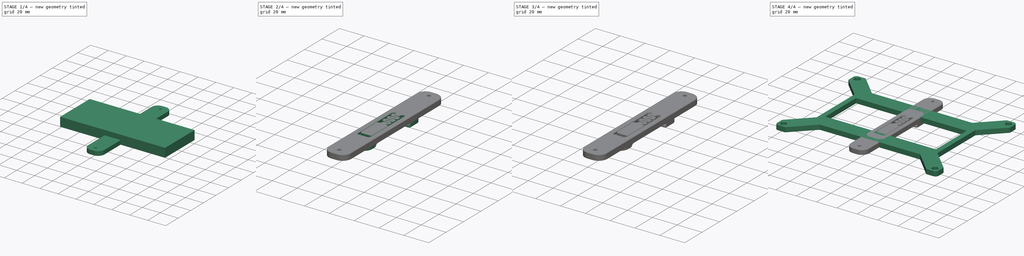
[diagram: build sequence overview — one tinted view per stage of 4, left to right]
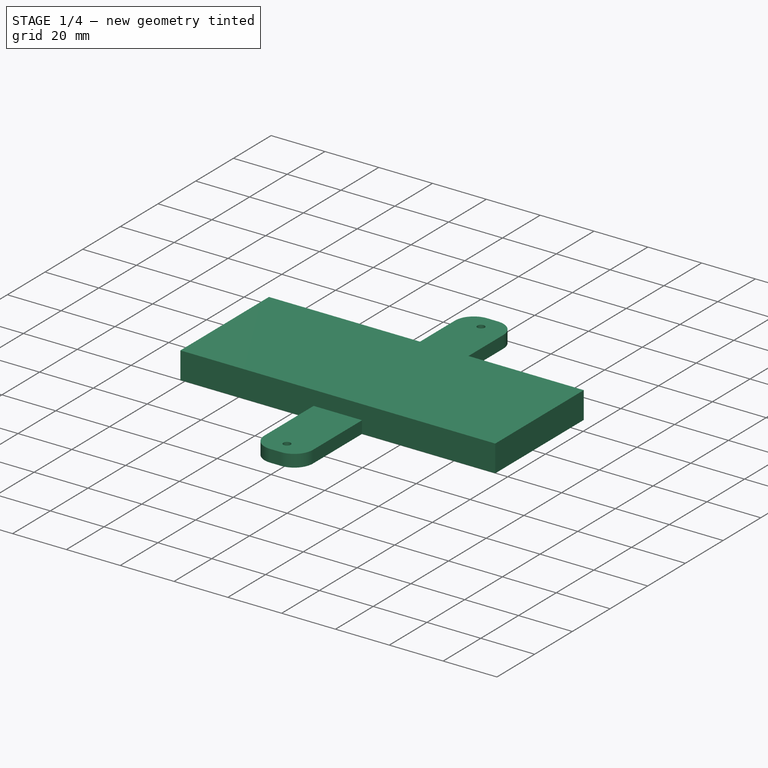
[diagram: stage 1 of 4 — iso view after this stage's code; geometry added in this stage tinted green]
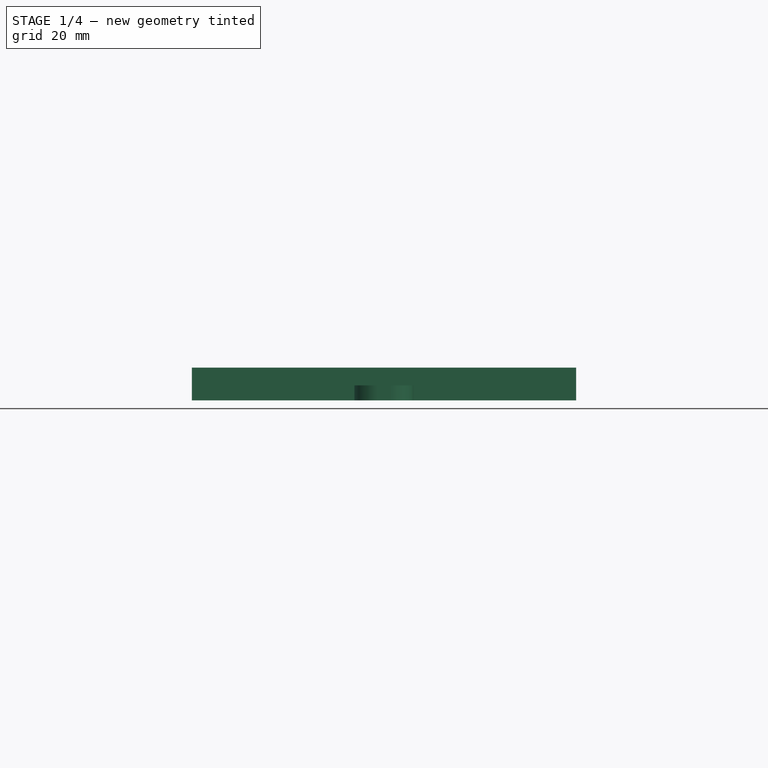
[diagram: stage 1 of 4 — front view after this stage's code; geometry added in this stage tinted green]
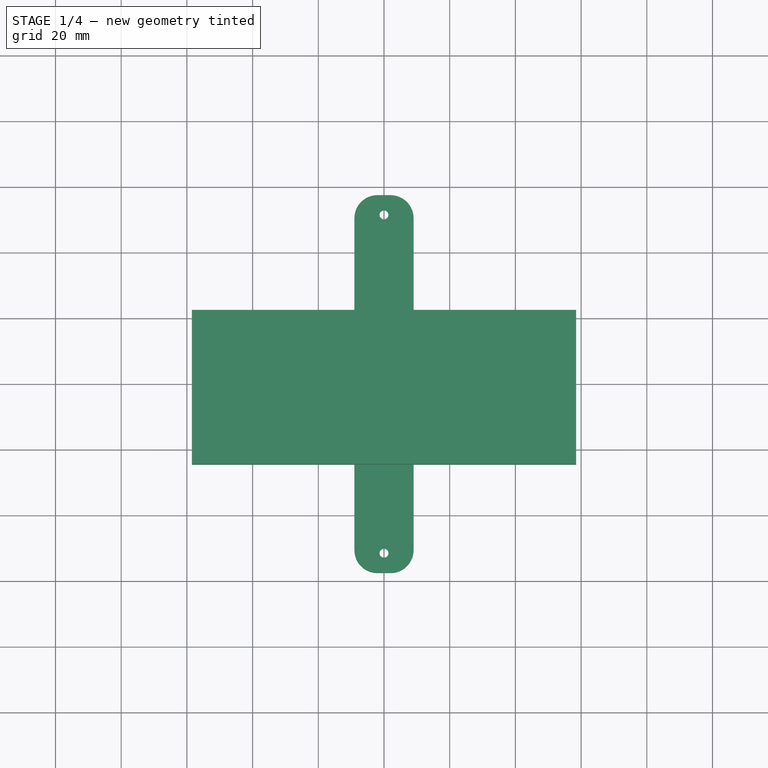
[diagram: stage 1 of 4 — top view after this stage's code; geometry added in this stage tinted green]
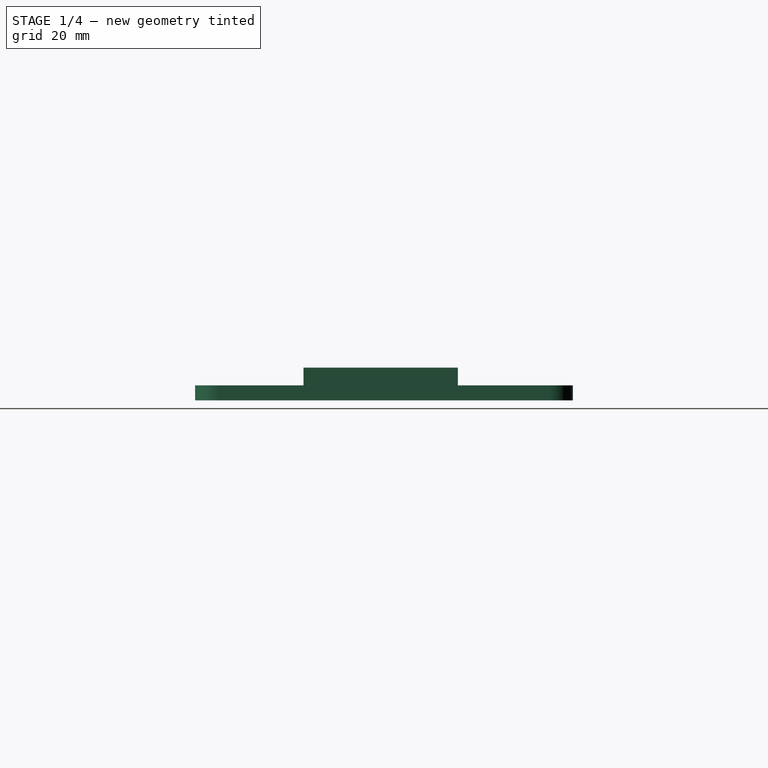
[diagram: stage 1 of 4 — right view after this stage's code; geometry added in this stage tinted green]
FCSTD DOCUMENT  (FreeCAD 0.19R24291 (Git))
Label: mellow-super-8-din-mounter
License: Other
LicenseURL: GPL3
objects: Sketcher::SketchObject×4, Part::Feature×2, PartDesign::Pad×2, Part::Cylinder×2, PartDesign::Fillet×2, PartDesign::Pocket×2, PartDesign::Body×2, Part::Cut×2, Part::Chamfer×2, Part::Box×1, Part::MultiFuse×1
note: 28 computed .brp shape members not serialized (recipe doc carries the construction recipe); baked Part::Feature solids carry a one-line shape summary decoded from their .brp

FEATURE [Part::Box] Box  label="Cube"
  AttacherType = Attacher::AttachEngine3D
  Height = 10
  Length = 117
  Placement = pos=(-58.5,-24.5,0) rot=(0,0,1;0rad)
  Width = 47
FEATURE [Sketcher::SketchObject] Sketch002
  FullyConstrained = true
  MapMode = 5
  Support = -> [XY_Plane001]
  sketch-geometry (6):
    g0: Circle CenterX=0 CenterY=51.5 CenterZ=0 NormalX=0 NormalY=0 NormalZ=1 AngleXU=0 Radius=1.35
    g1: Circle CenterX=0 CenterY=-51.5 CenterZ=0 NormalX=0 NormalY=0 NormalZ=1 AngleXU=0 Radius=1.35
    g2: LineSegment StartX=-9 StartY=57.5 StartZ=0 EndX=9 EndY=57.5 EndZ=0
    g3: LineSegment StartX=9 StartY=57.5 StartZ=0 EndX=9 EndY=-57.5 EndZ=0
    g4: LineSegment StartX=9 StartY=-57.5 StartZ=0 EndX=-9 EndY=-57.5 EndZ=0
    g5: LineSegment StartX=-9 StartY=-57.5 StartZ=0 EndX=-9 EndY=57.5 EndZ=0
  constraints (18):
    c: PointOnObject(g0,g-2)
    c: PointOnObject(g1,g-2)
    c: DistanceY(g1,g0) = 103
    c: DistanceY(g-1,g0) = 51.5
    c: Radius(g0) = 1.35
    c: Radius(g1) = 1.35
    c: Coincident(g2,g3)
    c: Coincident(g3,g4)
    c: Coincident(g4,g5)
    c: Coincident(g5,g2)
    c: Horizontal(g2)
    c: Horizontal(g4)
    c: Vertical(g3)
    c: Vertical(g5)
    c: DistanceX(g2,g2) = 18
    c: DistanceX(g2,g0) = 9
    c: DistanceY(g0,g2) = 6
    c: DistanceY(g3,g1) = 6
FEATURE [PartDesign::Pad] Pad001
  Direction = (1,1,1)
  Length = 4.6
  Length2 = 100
  Profile = -> Sketch002
  Type = 0
FEATURE [Sketcher::SketchObject] Sketch003
  FullyConstrained = true
  MapMode = 5
  Placement = pos=(0,0,0) rot=(1,0,0;3.14159rad)
  Support = -> [Pad001]
  sketch-geometry (14):
    g0: LineSegment StartX=2.68468 StartY=49.95 StartZ=0 EndX=2.68468 EndY=53.05 EndZ=0
    g1: LineSegment StartX=2.68468 StartY=53.05 StartZ=0 EndX=-2.407e-13 EndY=54.6 EndZ=0
    g2: LineSegment StartX=-2.407e-13 StartY=54.6 StartZ=0 EndX=-2.68468 EndY=53.05 EndZ=0
    g3: LineSegment StartX=-2.68468 StartY=53.05 StartZ=0 EndX=-2.68468 EndY=49.95 EndZ=0
    g4: LineSegment StartX=-2.68468 StartY=49.95 StartZ=0 EndX=2.398e-13 EndY=48.4 EndZ=0
    g5: LineSegment StartX=2.398e-13 StartY=48.4 StartZ=0 EndX=2.68468 EndY=49.95 EndZ=0
    g6: Circle CenterX=0 CenterY=51.5 CenterZ=0 NormalX=0 NormalY=0 NormalZ=1 AngleXU=0 Radius=3.1
    g7: LineSegment StartX=2.68468 StartY=-53.05 StartZ=0 EndX=2.68468 EndY=-49.95 EndZ=0
    g8: LineSegment StartX=2.68468 StartY=-49.95 StartZ=0 EndX=4e-16 EndY=-48.4 EndZ=0
    g9: LineSegment StartX=4e-16 StartY=-48.4 StartZ=0 EndX=-2.68468 EndY=-49.95 EndZ=0
    g10: LineSegment StartX=-2.68468 StartY=-49.95 StartZ=0 EndX=-2.68468 EndY=-53.05 EndZ=0
    g11: LineSegment StartX=-2.68468 StartY=-53.05 StartZ=0 EndX=-4e-16 EndY=-54.6 EndZ=0
    g12: LineSegment StartX=-3e-16 StartY=-54.6 StartZ=0 EndX=2.68468 EndY=-53.05 EndZ=0
    g13: Circle CenterX=0 CenterY=-51.5 CenterZ=0 NormalX=0 NormalY=0 NormalZ=1 AngleXU=0 Radius=3.1
  constraints (34):
    c: Coincident(g0,g1)
    c: Coincident(g1,g2)
    c: Coincident(g2,g3)
    c: Coincident(g3,g4)
    c: Coincident(g4,g5)
    c: Coincident(g5,g0)
    c: Equal(g0, g1-g5) x5
    c: PointOnObject(g0,g6)
    c: PointOnObject(g1,g6)
    c: PointOnObject(g2,g6)
    c: PointOnObject(g3,g6)
    c: PointOnObject(g4,g6)
    c: PointOnObject(g5,g6)
    c: PointOnObject(g6,g-2)
    c: Coincident(g7,g8)
    c: Coincident(g8,g9)
    c: Coincident(g9,g10)
    c: Coincident(g10,g11)
    c: Coincident(g11,g12)
    c: Coincident(g12,g7)
    c: Equal(g7, g8-g12) x5
    c: PointOnObject(g7,g13)
    c: PointOnObject(g8,g13)
    c: PointOnObject(g9,g13)
    c: PointOnObject(g10,g13)
    c: PointOnObject(g11,g13)
    c: PointOnObject(g12,g13)
    c: PointOnObject(g13,g-2)
    c: Radius(g6) = 3.1
    c: Radius(g13) = 3.1
    c: Vertical(g10)
    c: Vertical(g3)
    c: DistanceY(g-1,g6) = 51.5
    c: DistanceY(g13,g-1) = 51.5
FEATURE [PartDesign::Pocket] Pocket001
  BaseFeature = -> Pad001
  Length = 2.6
  Length2 = 100
  Profile = -> Sketch003
  Type = 0
FEATURE [PartDesign::Fillet] Fillet001
  Base = -> Pocket001 [Edge1,Edge2,Edge8,Edge5]
  BaseFeature = -> Pocket001
  Radius = 7
  SupportTransform = false
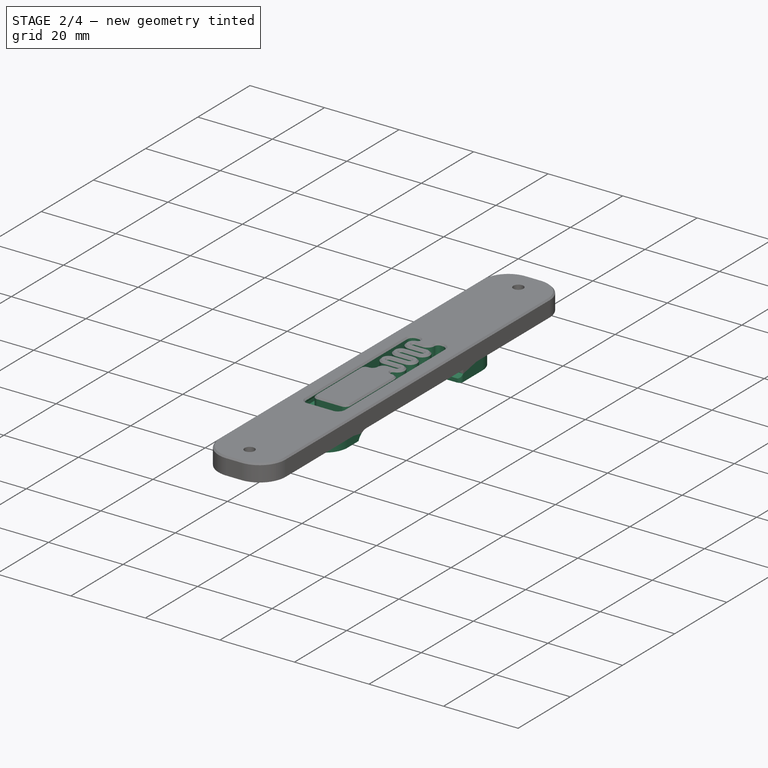
[diagram: stage 2 of 4 — iso view after this stage's code; geometry added in this stage tinted green]
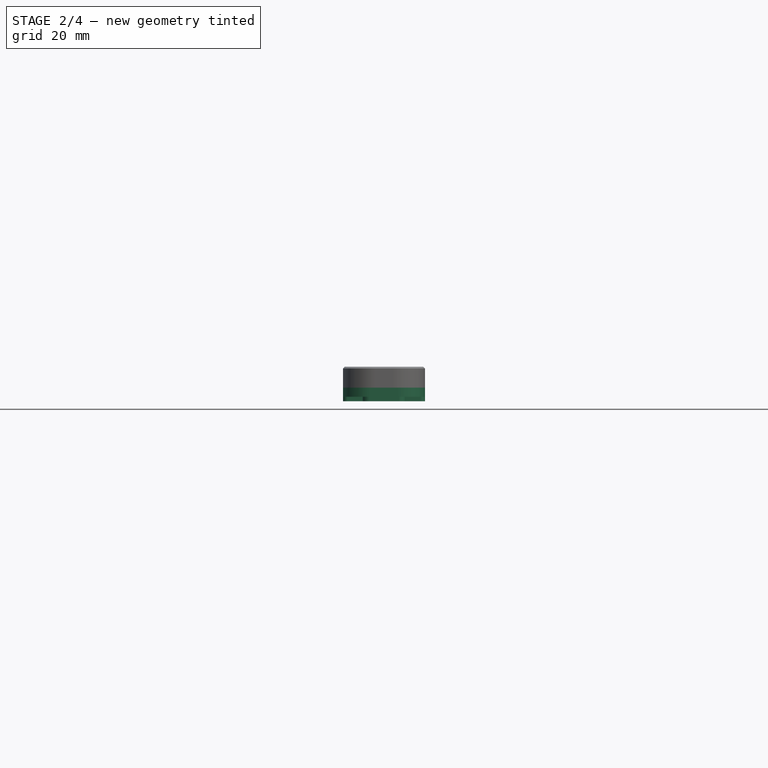
[diagram: stage 2 of 4 — front view after this stage's code; geometry added in this stage tinted green]
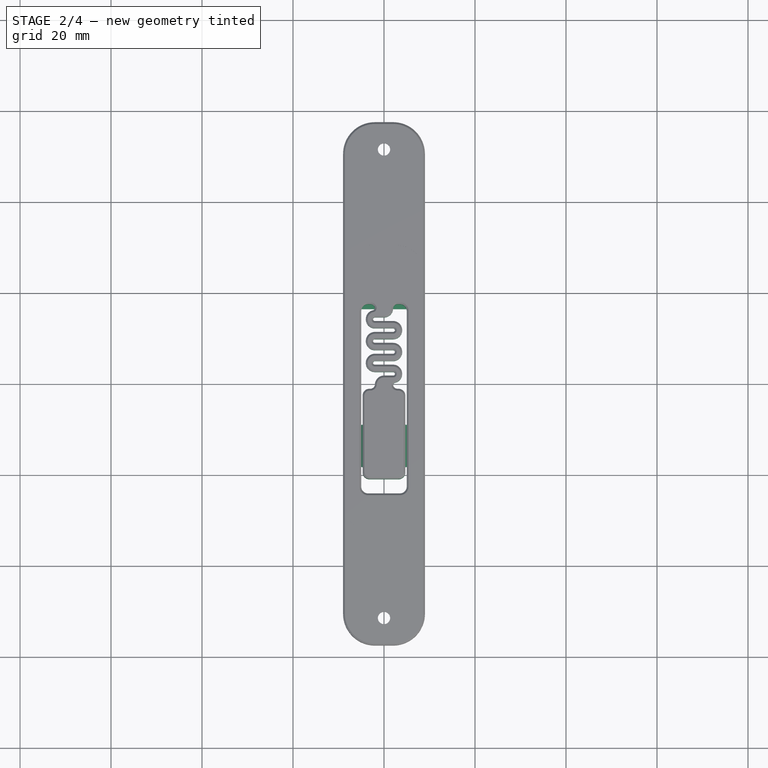
[diagram: stage 2 of 4 — top view after this stage's code; geometry added in this stage tinted green]
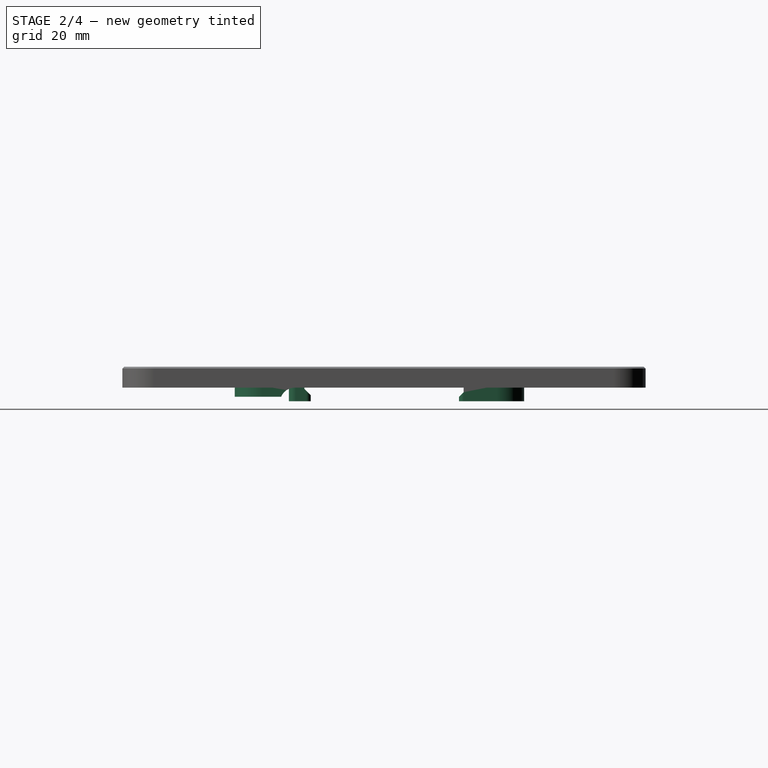
[diagram: stage 2 of 4 — right view after this stage's code; geometry added in this stage tinted green]
FEATURE [PartDesign::Body] Body004007
  Group = -> [Sketch002,Pad001,Sketch003,Pocket001,Fillet001]
  Origin = -> Origin001
  Tip = -> Fillet001
FEATURE [Part::Cut] Cut001
  Base = -> Fillet001
  Tool = -> Box
FEATURE [Part::Chamfer] Chamfer001
  Base = -> Cut001
  Edges = 10 edges r=0.4: [Edge4,Edge17,Edge19,Edge20,Edge22,Edge53,Edge56,Edge58,Edge60,Edge61]
FEATURE [Part::MultiFuse] Fusion
  Shapes = -> [Chamfer001,Body004005]
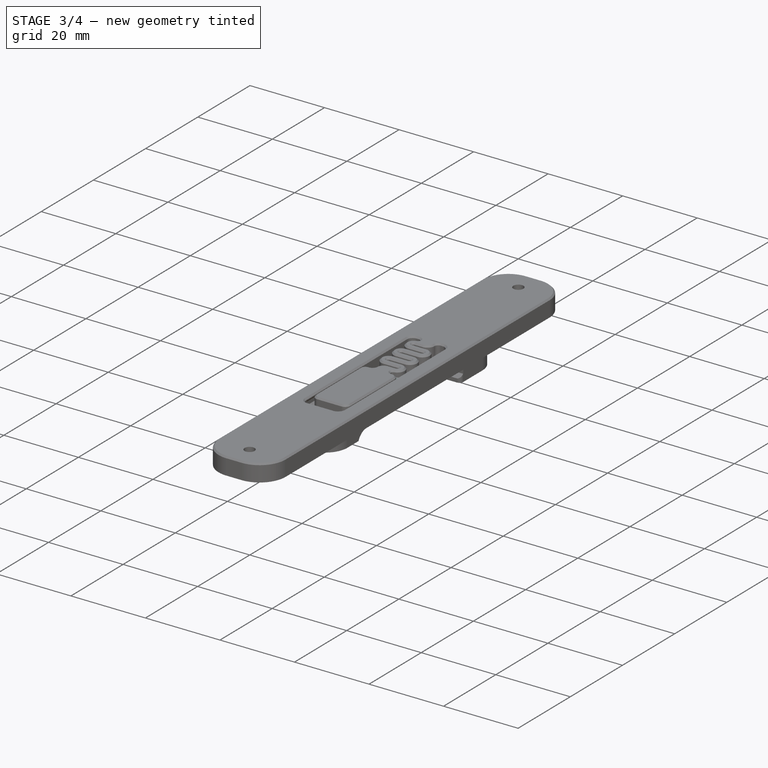
[diagram: stage 3 of 4 — iso view after this stage's code; geometry added in this stage tinted green]
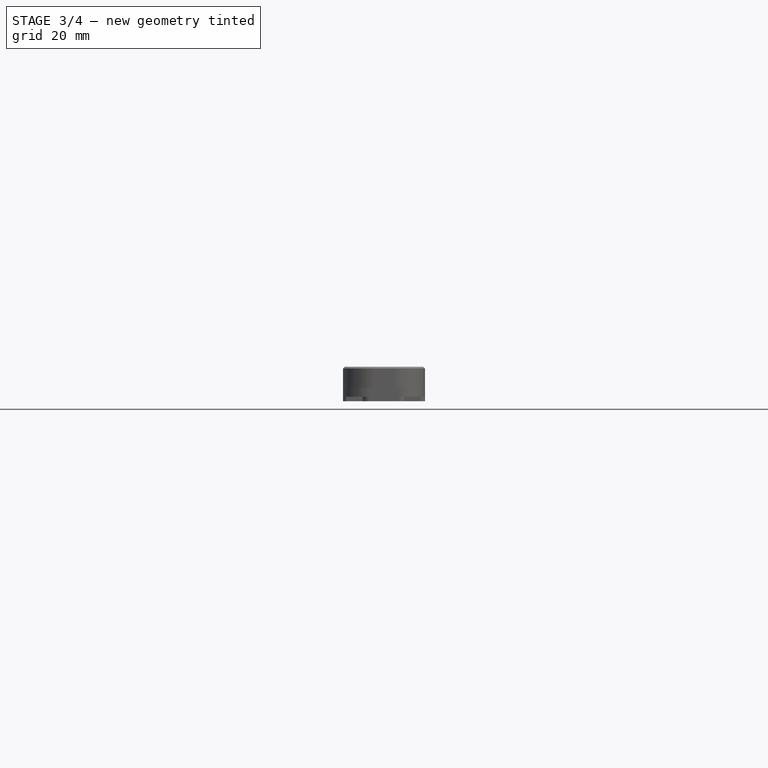
[diagram: stage 3 of 4 — front view after this stage's code; geometry added in this stage tinted green]
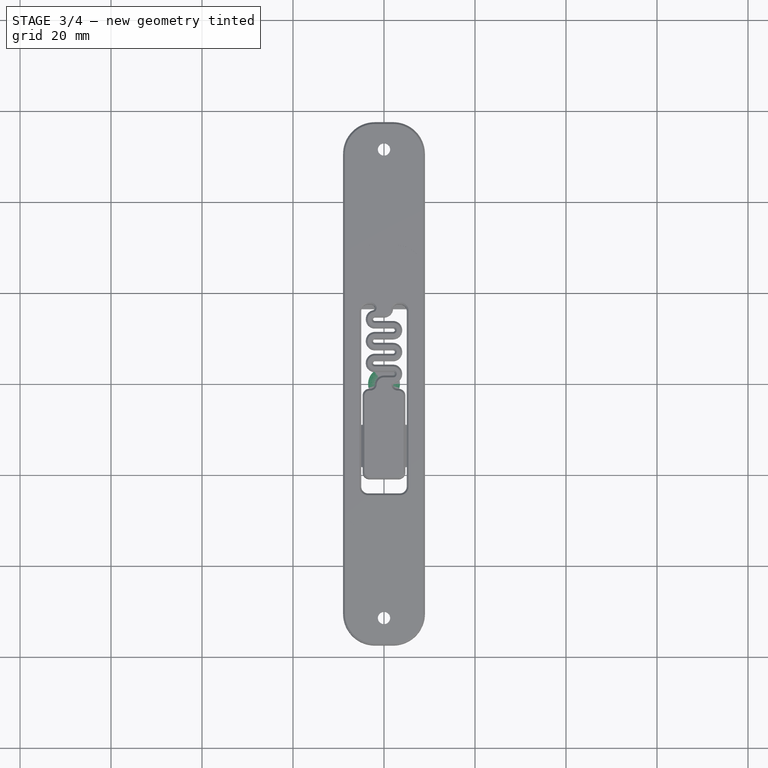
[diagram: stage 3 of 4 — top view after this stage's code; geometry added in this stage tinted green]
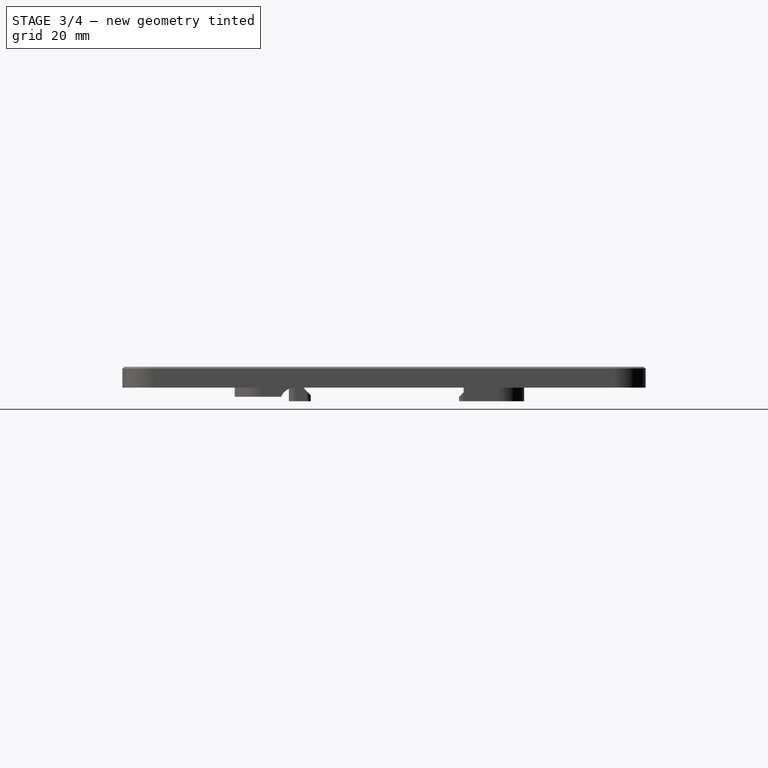
[diagram: stage 3 of 4 — right view after this stage's code; geometry added in this stage tinted green]
FEATURE [Part::Cylinder] Cylinder
  Angle = 360
  AttacherType = Attacher::AttachEngine3D
  Height = 3
  Radius = 3.5
FEATURE [Part::Cylinder] Cylinder001
  Angle = 360
  AttacherType = Attacher::AttachEngine3D
  Height = 3
  Radius = 1.35
FEATURE [PartDesign::Body] Body
  Group = -> [Sketch,Pad,Fillet,Sketch001,Pocket]
  Origin = -> Origin
  Tip = -> Pocket
FEATURE [Part::Cut] Cut
  Base = -> Cylinder
  Tool = -> Cylinder001
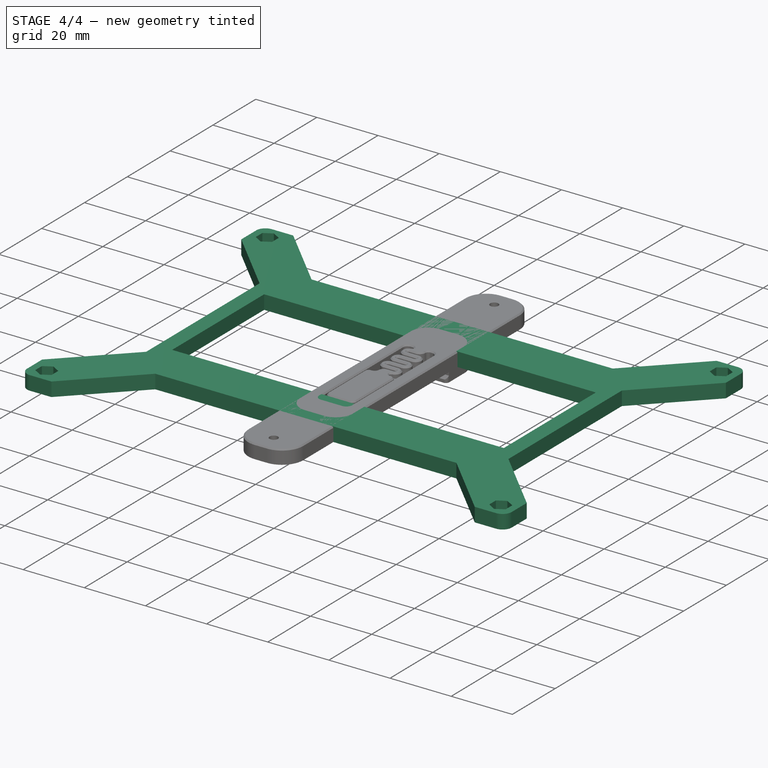
[diagram: stage 4 of 4 — iso view after this stage's code; geometry added in this stage tinted green]
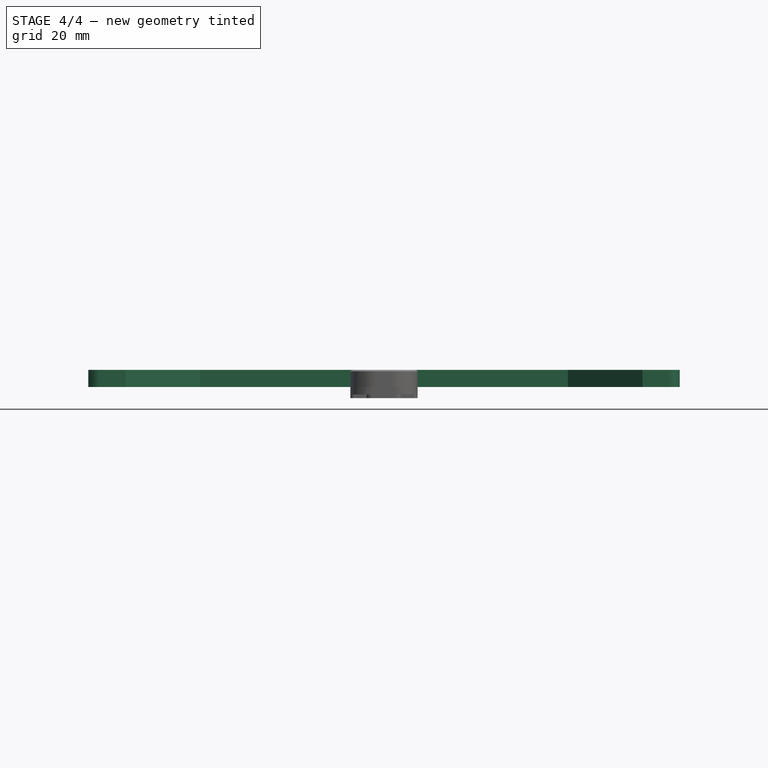
[diagram: stage 4 of 4 — front view after this stage's code; geometry added in this stage tinted green]
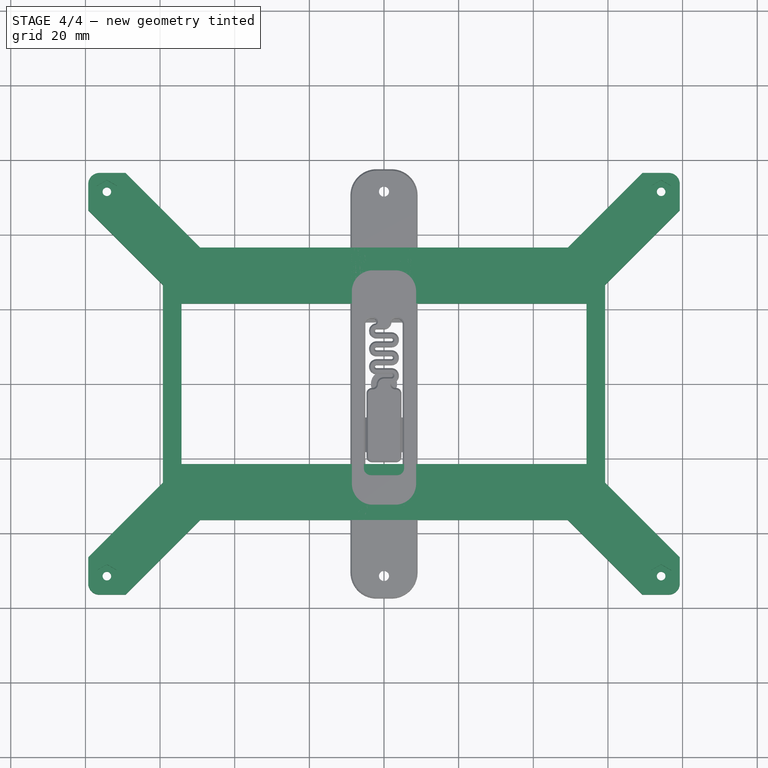
[diagram: stage 4 of 4 — top view after this stage's code; geometry added in this stage tinted green]
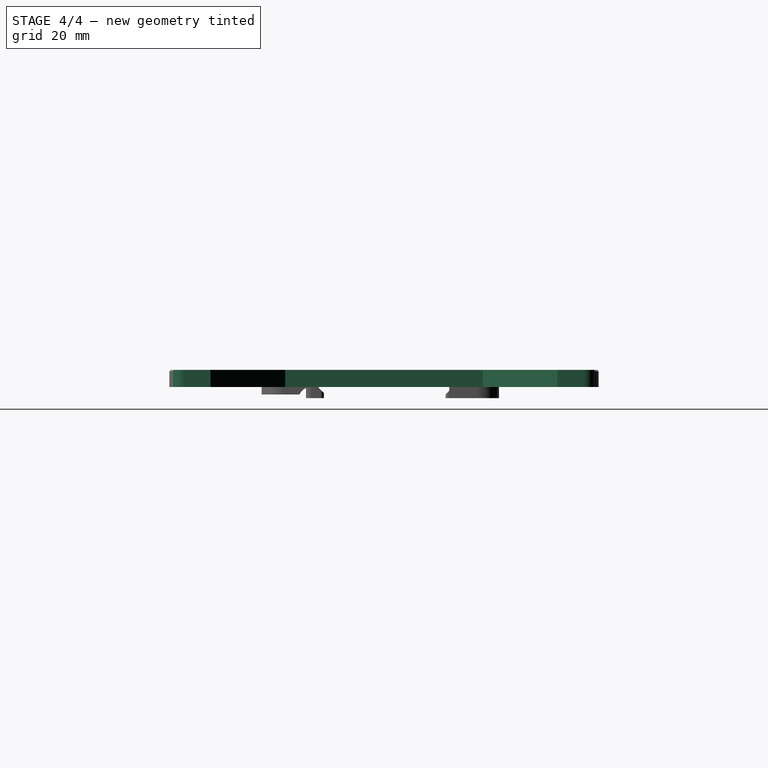
[diagram: stage 4 of 4 — right view after this stage's code; geometry added in this stage tinted green]
FEATURE [Part::Feature] Body004005  label="base004"
  Placement = pos=(0,0,4.6) rot=(0,0,1;0rad)
  shape: bbox 18 x 63.6 x 7.6 mm, 165 faces (baked)
FEATURE [Sketcher::SketchObject] Sketch
  FullyConstrained = true
  MapMode = 5
  Support = -> [XY_Plane]
  sketch-geometry (28):
    g0: Circle CenterX=-74.25 CenterY=51.5 CenterZ=0 NormalX=0 NormalY=0 NormalZ=1 AngleXU=0 Radius=1.15
    g1: Circle CenterX=74.25 CenterY=51.5 CenterZ=0 NormalX=0 NormalY=0 NormalZ=1 AngleXU=0 Radius=1.15
    g2: Circle CenterX=-74.25 CenterY=-51.5 CenterZ=0 NormalX=0 NormalY=0 NormalZ=1 AngleXU=0 Radius=1.15
    g3: Circle CenterX=74.25 CenterY=-51.5 CenterZ=0 NormalX=0 NormalY=0 NormalZ=1 AngleXU=0 Radius=1.15
    g4: LineSegment StartX=-69.25 StartY=56.5 StartZ=0 EndX=-79.25 EndY=56.5 EndZ=0
    g5: LineSegment StartX=-79.25 StartY=56.5 StartZ=0 EndX=-79.25 EndY=46.5 EndZ=0
    g6: LineSegment StartX=-79.25 StartY=-56.5 StartZ=0 EndX=-79.25 EndY=-46.5 EndZ=0
    g7: LineSegment StartX=-79.25 StartY=-56.5 StartZ=0 EndX=-69.25 EndY=-56.5 EndZ=0
    g8: LineSegment StartX=69.25 StartY=-56.5 StartZ=0 EndX=79.25 EndY=-56.5 EndZ=0
    g9: LineSegment StartX=79.25 StartY=-56.5 StartZ=0 EndX=79.25 EndY=-46.5 EndZ=0
    g10: LineSegment StartX=69.25 StartY=56.5 StartZ=0 EndX=79.25 EndY=56.5 EndZ=0
    g11: LineSegment StartX=79.25 StartY=56.5 StartZ=0 EndX=79.25 EndY=46.5 EndZ=0
    g12: LineSegment StartX=-79.25 StartY=46.5 StartZ=0 EndX=-59.25 EndY=26.5 EndZ=0
    g13: LineSegment StartX=-69.25 StartY=56.5 StartZ=0 EndX=-49.25 EndY=36.5 EndZ=0
    g14: LineSegment StartX=-79.25 StartY=-46.5 StartZ=0 EndX=-59.25 EndY=-26.5 EndZ=0
    g15: LineSegment StartX=-69.25 StartY=-56.5 StartZ=0 EndX=-49.25 EndY=-36.5 EndZ=0
    g16: LineSegment StartX=69.25 StartY=-56.5 StartZ=0 EndX=49.25 EndY=-36.5 EndZ=0
    g17: LineSegment StartX=79.25 StartY=-46.5 StartZ=0 EndX=59.25 EndY=-26.5 EndZ=0
    g18: LineSegment StartX=69.25 StartY=56.5 StartZ=0 EndX=49.25 EndY=36.5 EndZ=0
    g19: LineSegment StartX=79.25 StartY=46.5 StartZ=0 EndX=59.25 EndY=26.5 EndZ=0
    g20: LineSegment StartX=-49.25 StartY=36.5 StartZ=0 EndX=49.25 EndY=36.5 EndZ=0
    g21: LineSegment StartX=59.25 StartY=26.5 StartZ=0 EndX=59.25 EndY=-26.5 EndZ=0
    g22: LineSegment StartX=49.25 StartY=-36.5 StartZ=0 EndX=-49.25 EndY=-36.5 EndZ=0
    g23: LineSegment StartX=-59.25 StartY=-26.5 StartZ=0 EndX=-59.25 EndY=26.5 EndZ=0
    g24: LineSegment StartX=-54.25 StartY=21.5 StartZ=0 EndX=54.25 EndY=21.5 EndZ=0
    g25: LineSegment StartX=54.25 StartY=21.5 StartZ=0 EndX=54.25 EndY=-21.5 EndZ=0
    g26: LineSegment StartX=54.25 StartY=-21.5 StartZ=0 EndX=-54.25 EndY=-21.5 EndZ=0
    g27: LineSegment StartX=-54.25 StartY=-21.5 StartZ=0 EndX=-54.25 EndY=21.5 EndZ=0
  constraints (84):
    c: DistanceX(g0,g1) = 148.5
    c: DistanceX(g0,g-1) = 74.25
    c: DistanceY(g2,g0) = 103
    c: DistanceY(g-1,g0) = 51.5
    c: DistanceX(g3,g1) = 0
    c: DistanceX(g0,g2) = 0
    c: DistanceY(g2,g3) = 0
    c: Radius(g0) = 1.15
    c: Radius(g1) = 1.15
    c: Radius(g3) = 1.15
    c: Radius(g2) = 1.15
    c: Horizontal(g4)
    c: Coincident(g5,g4)
    c: Vertical(g5)
    c: Vertical(g6)
    c: Coincident(g7,g6)
    c: Horizontal(g7)
    c: Horizontal(g8)
    c: Coincident(g9,g8)
    c: Vertical(g9)
    c: Horizontal(g10)
    c: Coincident(g11,g10)
    c: Vertical(g11)
    c: DistanceY(g1,g0) = 0
    c: DistanceY(g0,g4) = 5
    c: DistanceY(g1,g10) = 5
    c: DistanceY(g8,g3) = 5
    c: DistanceY(g6,g2) = 5
    c: DistanceX(g6,g2) = 5
    c: DistanceX(g4,g0) = 5
    c: DistanceX(g1,g10) = 5
    c: DistanceX(g3,g8) = 5
    c: DistanceX(g8,g8) = 10
    c: DistanceX(g7,g7) = 10
    c: DistanceX(g4,g4) = 10
    c: DistanceX(g10,g10) = 10
    c: DistanceY(g11,g11) = 10
    c: DistanceY(g9,g9) = 10
    c: DistanceY(g6,g6) = 10
    c: DistanceY(g5,g5) = 10
    c: Coincident(g12,g5)
    c: Coincident(g13,g4)
    c: Coincident(g14,g6)
    c: Coincident(g15,g7)
    c: Coincident(g16,g8)
    c: Coincident(g17,g9)
    c: Coincident(g18,g10)
    c: Coincident(g19,g11)
    c: Angle(g-1,g12) = 2.35619
    c: Angle(g13,g-1) = 0.785398
    c: Angle(g-1,g18) = 0.785398
    c: Angle(g-1,g19) = 0.785398
    c: Angle(g14,g-1) = 2.35619
    c: Angle(g15,g-1) = 2.35619
    c: Angle(g17,g-1) = 0.785398
    c: Angle(g-1,g16) = 2.35619
    c: DistanceX(g6,g14) = 20
    c: DistanceX(g7,g15) = 20
    c: DistanceX(g5,g12) = 20
    c: DistanceX(g4,g13) = 20
    c: DistanceX(g18,g10) = 20
    c: DistanceX(g19,g11) = 20
    c: DistanceX(g17,g9) = 20
    c: DistanceX(g16,g8) = 20
    c: Coincident(g20,g13)
    c: Coincident(g20,g18)
    c: Coincident(g21,g19)
    c: Coincident(g21,g17)
    c: Coincident(g22,g16)
    c: Coincident(g22,g15)
    c: Coincident(g23,g14)
    c: Coincident(g23,g12)
    c: Coincident(g24,g25)
    c: Coincident(g25,g26)
    c: Coincident(g26,g27)
    c: Coincident(g27,g24)
    c: Horizontal(g24)
    c: Horizontal(g26)
    c: Vertical(g25)
    c: Vertical(g27)
    c: DistanceY(g24,g0) = 30
    c: DistanceY(g2,g26) = 30
    c: DistanceX(g2,g26) = 20
    c: DistanceX(g25,g3) = 20
FEATURE [Part::Feature] Body004006  label="base005"
  Placement = pos=(50,0,4.6) rot=(0,0,1;0rad)
  shape: bbox 18 x 63.6 x 7.6 mm, 165 faces (baked)
FEATURE [PartDesign::Pad] Pad
  Direction = (1,1,1)
  Length = 4.6
  Length2 = 100
  Profile = -> Sketch
  Type = 0
FEATURE [PartDesign::Fillet] Fillet
  Base = -> Pad [Edge35,Edge50,Edge5,Edge20]
  BaseFeature = -> Pad
  Radius = 3
  SupportTransform = false
FEATURE [Sketcher::SketchObject] Sketch001
  FullyConstrained = true
  MapMode = 5
  Placement = pos=(0,0,4.6) rot=(0,0,1;0rad)
  Support = -> [Fillet]
  sketch-geometry (28):
    g0: LineSegment StartX=-71.5653 StartY=49.95 StartZ=0 EndX=-71.5653 EndY=53.05 EndZ=0
    g1: LineSegment StartX=-71.5653 StartY=53.05 StartZ=0 EndX=-74.25 EndY=54.6 EndZ=0
    g2: LineSegment StartX=-74.25 StartY=54.6 StartZ=0 EndX=-76.9347 EndY=53.05 EndZ=0
    g3: LineSegment StartX=-76.9347 StartY=53.05 StartZ=0 EndX=-76.9347 EndY=49.95 EndZ=0
    g4: LineSegment StartX=-76.9347 StartY=49.95 StartZ=0 EndX=-74.25 EndY=48.4 EndZ=0
    g5: LineSegment StartX=-74.25 StartY=48.4 StartZ=0 EndX=-71.5653 EndY=49.95 EndZ=0
    g6: Circle CenterX=-74.25 CenterY=51.5 CenterZ=0 NormalX=0 NormalY=0 NormalZ=1 AngleXU=0 Radius=3.1
    g7: LineSegment StartX=-71.5653 StartY=-53.05 StartZ=0 EndX=-71.5653 EndY=-49.95 EndZ=0
    g8: LineSegment StartX=-71.5653 StartY=-49.95 StartZ=0 EndX=-74.25 EndY=-48.4 EndZ=0
    g9: LineSegment StartX=-74.25 StartY=-48.4 StartZ=0 EndX=-76.9347 EndY=-49.95 EndZ=0
    g10: LineSegment StartX=-76.9347 StartY=-49.95 StartZ=0 EndX=-76.9347 EndY=-53.05 EndZ=0
    g11: LineSegment StartX=-76.9347 StartY=-53.05 StartZ=0 EndX=-74.25 EndY=-54.6 EndZ=0
    g12: LineSegment StartX=-74.25 StartY=-54.6 StartZ=0 EndX=-71.5653 EndY=-53.05 EndZ=0
    g13: Circle CenterX=-74.25 CenterY=-51.5 CenterZ=0 NormalX=0 NormalY=0 NormalZ=1 AngleXU=0 Radius=3.1
    g14: LineSegment StartX=76.9347 StartY=-53.05 StartZ=0 EndX=76.9347 EndY=-49.95 EndZ=0
    g15: LineSegment StartX=76.9347 StartY=-49.95 StartZ=0 EndX=74.25 EndY=-48.4 EndZ=0
    g16: LineSegment StartX=74.25 StartY=-48.4 StartZ=0 EndX=71.5653 EndY=-49.95 EndZ=0
    g17: LineSegment StartX=71.5653 StartY=-49.95 StartZ=0 EndX=71.5653 EndY=-53.05 EndZ=0
    g18: LineSegment StartX=71.5653 StartY=-53.05 StartZ=0 EndX=74.25 EndY=-54.6 EndZ=0
    g19: LineSegment StartX=74.25 StartY=-54.6 StartZ=0 EndX=76.9347 EndY=-53.05 EndZ=0
    g20: Circle CenterX=74.25 CenterY=-51.5 CenterZ=0 NormalX=0 NormalY=0 NormalZ=1 AngleXU=0 Radius=3.1
    g21: LineSegment StartX=76.9347 StartY=49.95 StartZ=0 EndX=76.9347 EndY=53.05 EndZ=0
    g22: LineSegment StartX=76.9347 StartY=53.05 StartZ=0 EndX=74.25 EndY=54.6 EndZ=0
    g23: LineSegment StartX=74.25 StartY=54.6 StartZ=0 EndX=71.5653 EndY=53.05 EndZ=0
    g24: LineSegment StartX=71.5653 StartY=53.05 StartZ=0 EndX=71.5653 EndY=49.95 EndZ=0
    g25: LineSegment StartX=71.5653 StartY=49.95 StartZ=0 EndX=74.25 EndY=48.4 EndZ=0
    g26: LineSegment StartX=74.25 StartY=48.4 StartZ=0 EndX=76.9347 EndY=49.95 EndZ=0
    g27: Circle CenterX=74.25 CenterY=51.5 CenterZ=0 NormalX=0 NormalY=0 NormalZ=1 AngleXU=0 Radius=3.1
  constraints (68):
    c: Coincident(g0,g1)
    c: Coincident(g1,g2)
    c: Coincident(g2,g3)
    c: Coincident(g3,g4)
    c: Coincident(g4,g5)
    c: Coincident(g5,g0)
    c: Equal(g0, g1-g5) x5
    c: PointOnObject(g0,g6)
    c: PointOnObject(g1,g6)
    c: PointOnObject(g2,g6)
    c: PointOnObject(g3,g6)
    c: PointOnObject(g4,g6)
    c: PointOnObject(g5,g6)
    c: Coincident(g7,g8)
    c: Coincident(g8,g9)
    c: Coincident(g9,g10)
    c: Coincident(g10,g11)
    c: Coincident(g11,g12)
    c: Coincident(g12,g7)
    c: Equal(g7, g8-g12) x5
    c: PointOnObject(g7,g13)
    c: PointOnObject(g8,g13)
    c: PointOnObject(g9,g13)
    c: PointOnObject(g10,g13)
    c: PointOnObject(g11,g13)
    c: PointOnObject(g12,g13)
    c: Coincident(g14,g15)
    c: Coincident(g15,g16)
    c: Coincident(g16,g17)
    c: Coincident(g17,g18)
    c: Coincident(g18,g19)
    c: Coincident(g19,g14)
    c: Equal(g14, g15-g19) x5
    c: PointOnObject(g14,g20)
    c: PointOnObject(g15,g20)
    c: PointOnObject(g16,g20)
    c: PointOnObject(g17,g20)
    c: PointOnObject(g18,g20)
    c: PointOnObject(g19,g20)
    c: Coincident(g21,g22)
    c: Coincident(g22,g23)
    c: Coincident(g23,g24)
    c: Coincident(g24,g25)
    c: Coincident(g25,g26)
    c: Coincident(g26,g21)
    c: Equal(g21, g22-g26) x5
    c: PointOnObject(g21,g27)
    c: PointOnObject(g22,g27)
    c: PointOnObject(g23,g27)
    c: PointOnObject(g24,g27)
    c: PointOnObject(g25,g27)
    c: PointOnObject(g26,g27)
    c: Radius(g27) = 3.1
    c: Radius(g6) = 3.1
    c: Radius(g13) = 3.1
    c: Radius(g20) = 3.1
    c: Vertical(g24)
    c: Vertical(g17)
    c: Vertical(g10)
    c: Vertical(g3)
    c: DistanceX(g13,g6) = 0
    c: DistanceX(g20,g27) = 0
    c: DistanceY(g27,g6) = 0
    c: DistanceY(g20,g13) = 0
    c: DistanceX(g13,g20) = 148.5
    c: DistanceX(g13,g-1) = 74.25
    c: DistanceY(g13,g6) = 103
    c: DistanceY(g-1,g6) = 51.5
FEATURE [PartDesign::Pocket] Pocket
  BaseFeature = -> Fillet
  Length = 2.6
  Length2 = 100
  Profile = -> Sketch001
  Type = 0
FEATURE [Part::Chamfer] Chamfer
  Base = -> Cut
  Edges = 1 edges r=0.4: [Edge5]
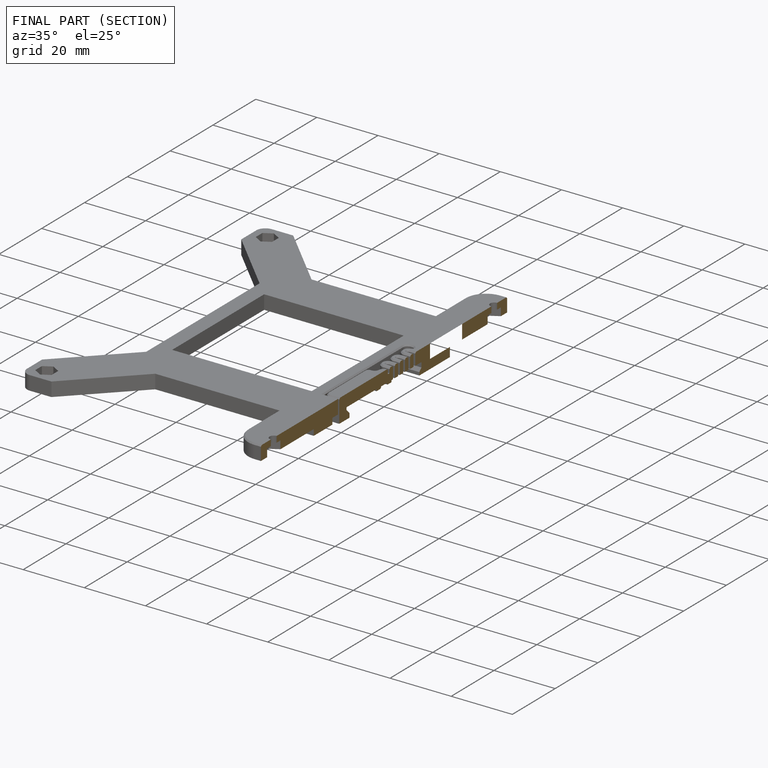
[diagram: finished part — half-section view (interior)]
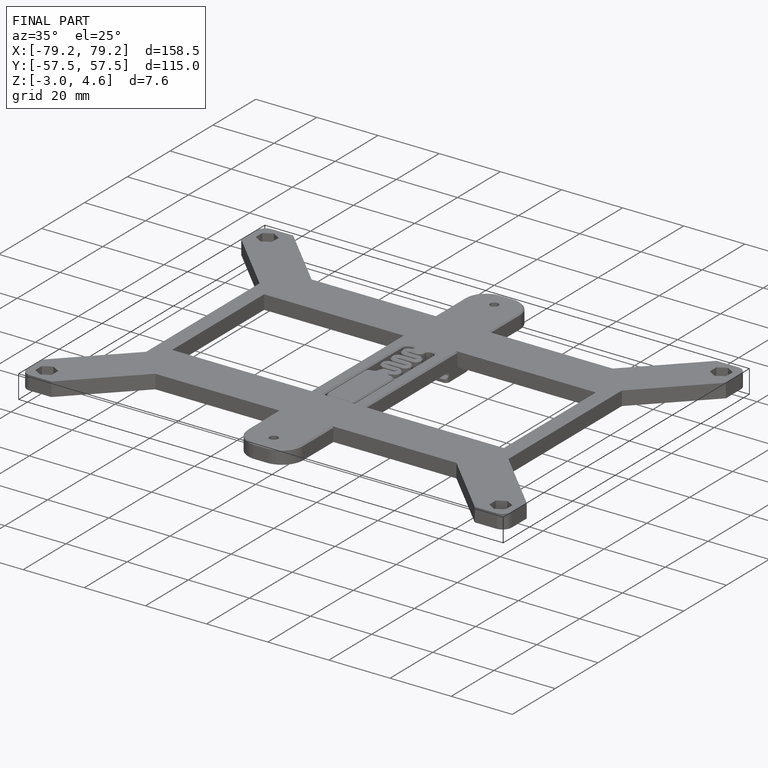
[diagram: finished part — iso view with bounding-box wireframe]
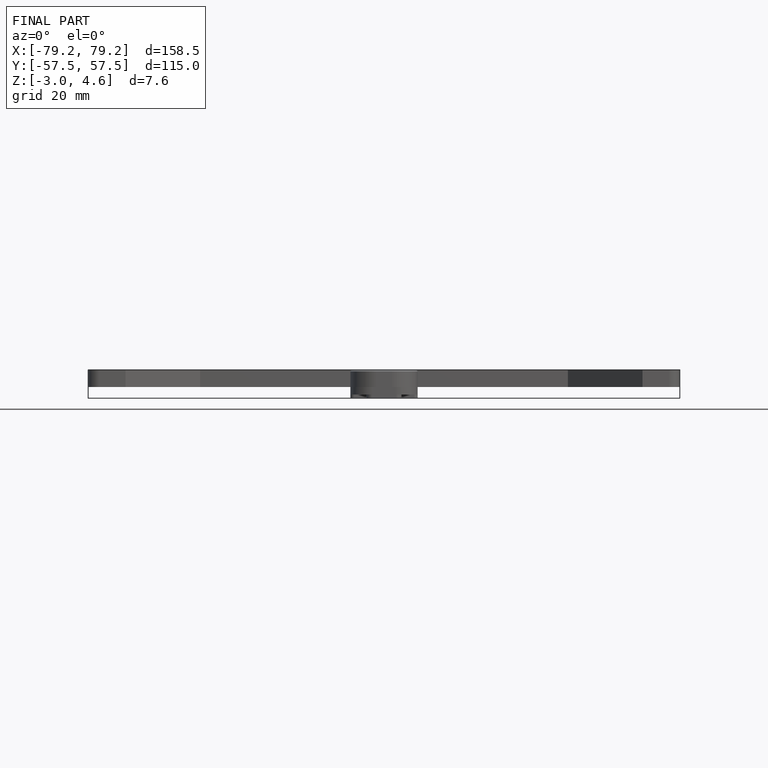
[diagram: finished part — front view with bounding-box wireframe]
